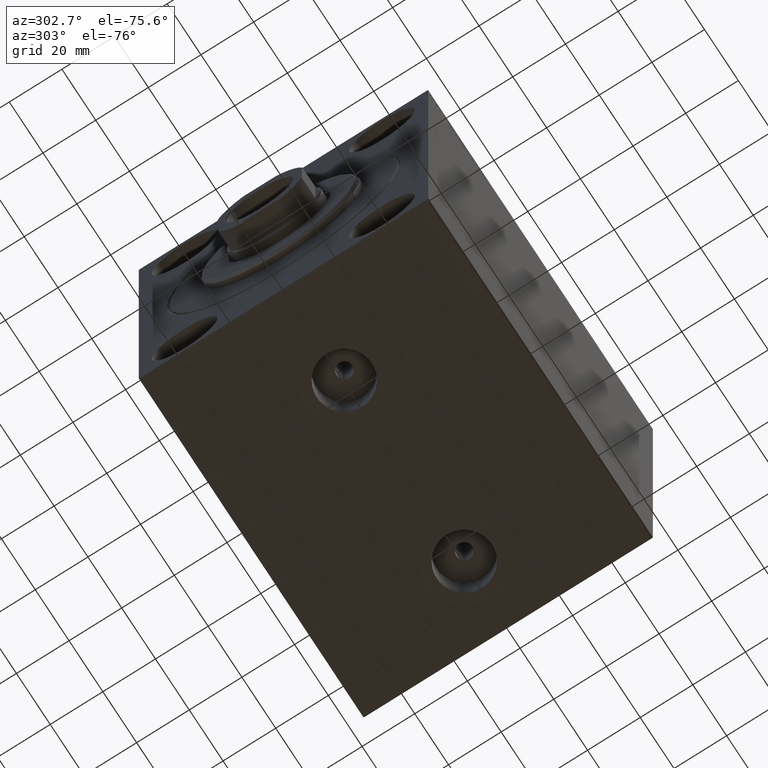
[diagram: clean part render]
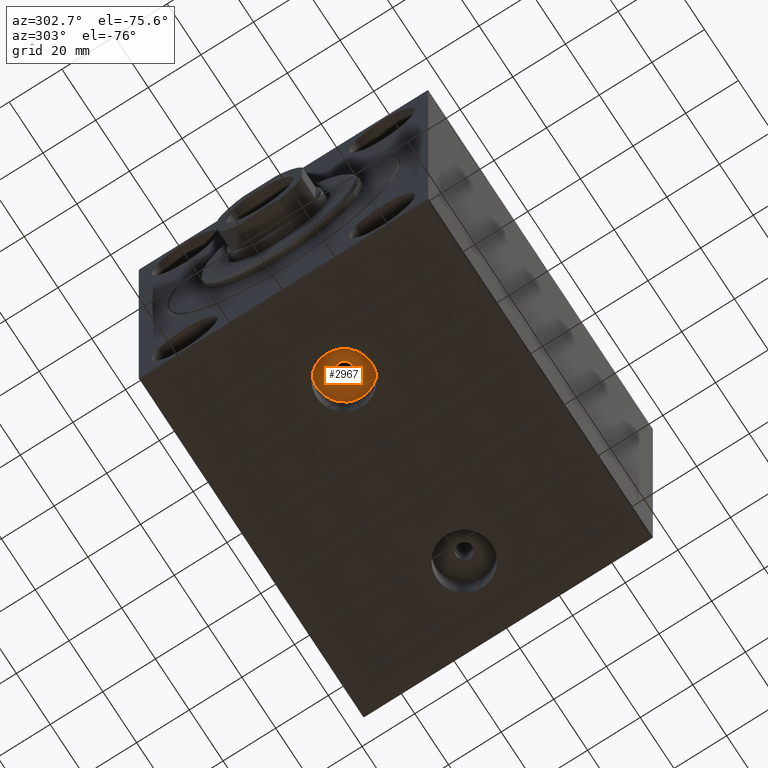
[diagram: same view with one face highlighted and labeled with its STEP entity id]
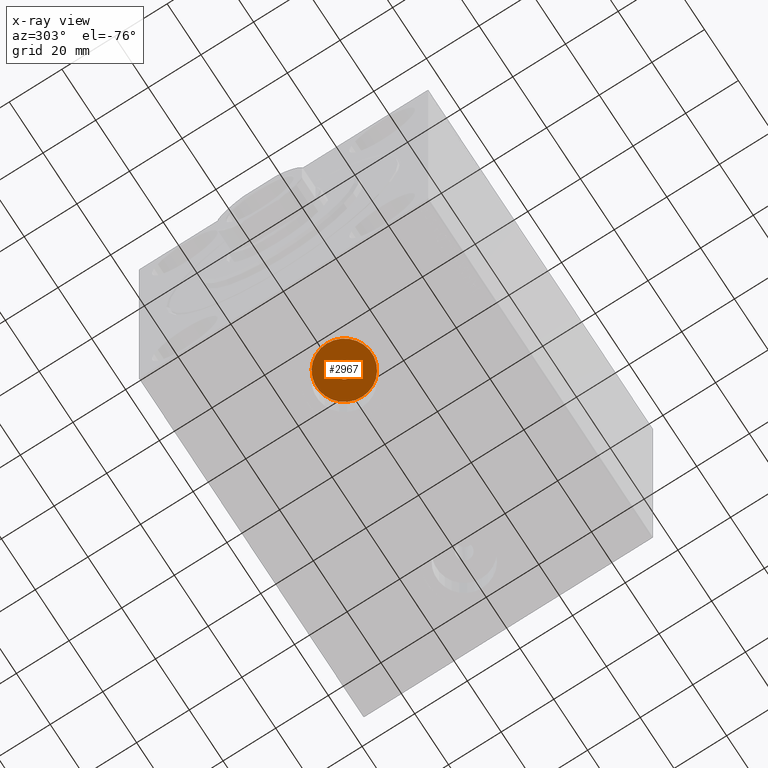
[diagram: x-ray of the same camera — body ghosted, the highlighted face saturated]
A machine part, auxiliary view. The second image highlights one B-rep face of the part: STEP entity #2967.
The next image is the same camera in x-ray: the body ghosted, the highlighted face saturated — about 0% of this face is hidden behind the body in this view.
In plain terms, the highlighted planar face has unit normal (0, 0, -1).
Its self-contained STEP definition (entity closure, byte-faithful):
#1293 = EDGE_CURVE ( 'NONE', #28281, #2826, #30675, .T. ) ;
#2195 = DIRECTION ( 'NONE',  ( 0.000000000000000000, 0.000000000000000000, -1.000000000000000000 ) ) ;
#2826 = VERTEX_POINT ( 'NONE', #16053 ) ;
#2967 = ADVANCED_FACE ( 'NONE', ( #16729, #21059 ), #13960, .T. ) ;
#3272 = VERTEX_POINT ( 'NONE', #21407 ) ;
#3637 = CARTESIAN_POINT ( 'NONE',  ( 36.00000000000000000, 7.996758912811346044E-15, -57.00000000000001421 ) ) ;
#5486 = DIRECTION ( 'NONE',  ( -1.000000000000000000, 0.000000000000000000, 0.000000000000000000 ) ) ;
#7069 = CARTESIAN_POINT ( 'NONE',  ( 36.00000000000000000, 7.996758912811346044E-15, -57.00000000000001421 ) ) ;
#7078 = DIRECTION ( 'NONE',  ( 0.000000000000000000, 0.000000000000000000, -1.000000000000000000 ) ) ;
#7238 = AXIS2_PLACEMENT_3D ( 'NONE', #40536, #12345, #5486 ) ;
#7557 = ORIENTED_EDGE ( 'NONE', *, *, #15759, .T. ) ;
#7881 = DIRECTION ( 'NONE',  ( -1.000000000000000000, 0.000000000000000000, 0.000000000000000000 ) ) ;
#9700 = CIRCLE ( 'NONE', #15560, 10.48000000000000043 ) ;
#10637 = CIRCLE ( 'NONE', #36974, 3.000000000000002665 ) ;
#11651 = ORIENTED_EDGE ( 'NONE', *, *, #1293, .F. ) ;
#12345 = DIRECTION ( 'NONE',  ( 0.000000000000000000, 0.000000000000000000, -1.000000000000000000 ) ) ;
#13960 = PLANE ( 'NONE',  #43879 ) ;
#15560 = AXIS2_PLACEMENT_3D ( 'NONE', #36796, #2195, #30607 ) ;
#15759 = EDGE_CURVE ( 'NONE', #3272, #44179, #9700, .T. ) ;
#16053 = CARTESIAN_POINT ( 'NONE',  ( 39.00000000000000000, 8.364152952555553066E-15, -57.00000000000001421 ) ) ;
#16729 = FACE_BOUND ( 'NONE', #40350, .T. ) ;
#18070 = DIRECTION ( 'NONE',  ( 0.000000000000000000, 0.000000000000000000, -1.000000000000000000 ) ) ;
#19214 = DIRECTION ( 'NONE',  ( -1.000000000000000000, 0.000000000000000000, 0.000000000000000000 ) ) ;
#20013 = AXIS2_PLACEMENT_3D ( 'NONE', #32166, #28510, #7881 ) ;
#21059 = FACE_OUTER_BOUND ( 'NONE', #26112, .T. ) ;
#21407 = CARTESIAN_POINT ( 'NONE',  ( 25.51999999999999602, 7.996758912811346044E-15, -57.00000000000001421 ) ) ;
#21412 = ORIENTED_EDGE ( 'NONE', *, *, #22430, .F. ) ;
#22430 = EDGE_CURVE ( 'NONE', #2826, #28281, #10637, .T. ) ;
#26112 = EDGE_LOOP ( 'NONE', ( #7557, #39640 ) ) ;
#26692 = CIRCLE ( 'NONE', #20013, 10.48000000000000043 ) ;
#27502 = DIRECTION ( 'NONE',  ( -1.000000000000000000, 0.000000000000000000, -0.000000000000000000 ) ) ;
#28281 = VERTEX_POINT ( 'NONE', #30689 ) ;
#28510 = DIRECTION ( 'NONE',  ( 0.000000000000000000, 0.000000000000000000, -1.000000000000000000 ) ) ;
#30607 = DIRECTION ( 'NONE',  ( -1.000000000000000000, 0.000000000000000000, 0.000000000000000000 ) ) ;
#30675 = CIRCLE ( 'NONE', #7238, 3.000000000000002665 ) ;
#30689 = CARTESIAN_POINT ( 'NONE',  ( 32.99999999999999289, 7.996758912811346044E-15, -57.00000000000001421 ) ) ;
#32166 = CARTESIAN_POINT ( 'NONE',  ( 36.00000000000000000, 7.996758912811346044E-15, -57.00000000000001421 ) ) ;
#36796 = CARTESIAN_POINT ( 'NONE',  ( 36.00000000000000000, 7.996758912811346044E-15, -57.00000000000001421 ) ) ;
#36974 = AXIS2_PLACEMENT_3D ( 'NONE', #7069, #18070, #19214 ) ;
#39640 = ORIENTED_EDGE ( 'NONE', *, *, #44613, .T. ) ;
#40350 = EDGE_LOOP ( 'NONE', ( #11651, #21412 ) ) ;
#40536 = CARTESIAN_POINT ( 'NONE',  ( 36.00000000000000000, 7.996758912811346044E-15, -57.00000000000001421 ) ) ;
#43879 = AXIS2_PLACEMENT_3D ( 'NONE', #3637, #7078, #27502 ) ;
#44179 = VERTEX_POINT ( 'NONE', #44530 ) ;
#44530 = CARTESIAN_POINT ( 'NONE',  ( 46.47999999999999687, 9.280188758317773110E-15, -57.00000000000001421 ) ) ;
#44613 = EDGE_CURVE ( 'NONE', #44179, #3272, #26692, .T. ) ;